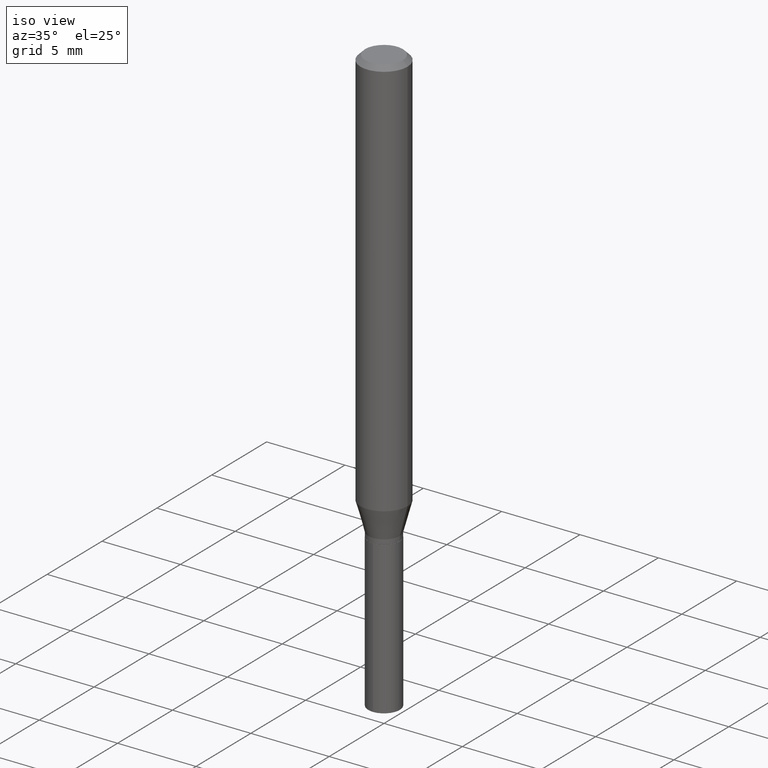
[diagram: clean part render]
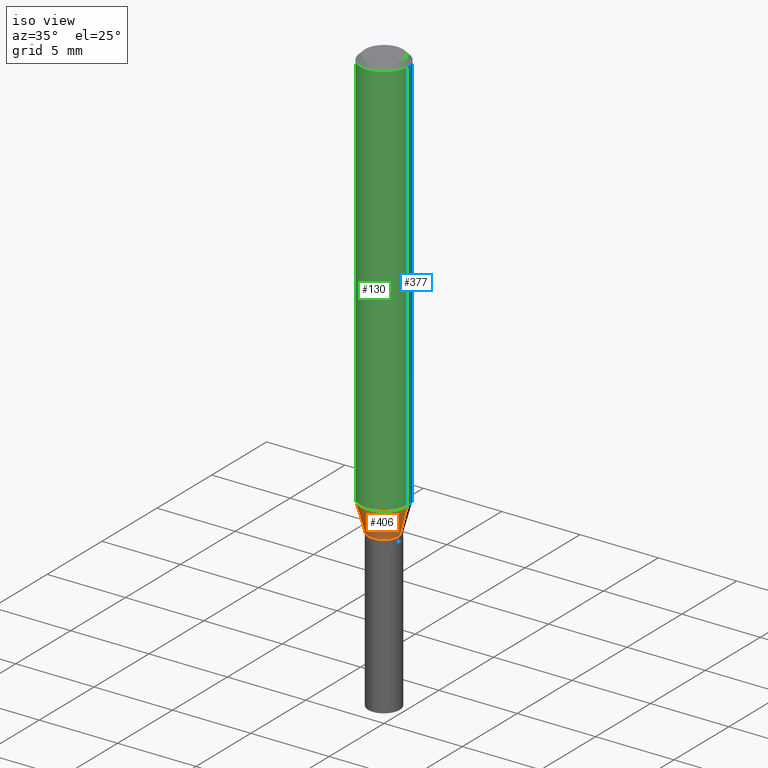
[diagram: same view with three faces highlighted in distinct colors, each labeled with its STEP entity id]
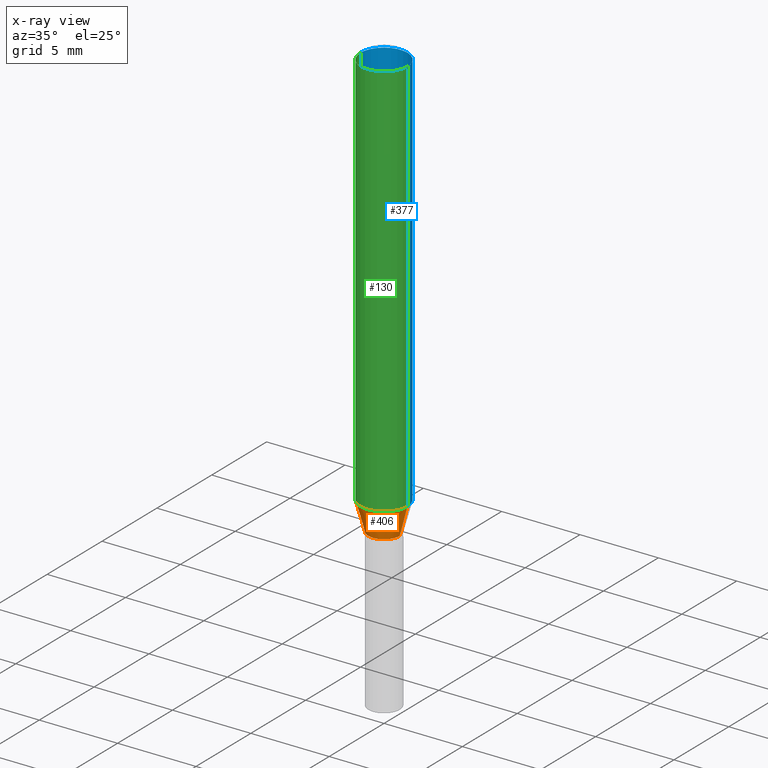
[diagram: x-ray of the same camera — body ghosted, the three highlighted faces saturated]
A machine part, iso view with three faces highlighted in distinct colors.
The next image is the same camera in x-ray (body ghosted, the three faces saturated) — at least one of them is partly hidden behind the body in this view.
Their STEP definitions:

[orange] entity #406 — the highlighted conical surface has half-angle 15 deg.
#2 = CARTESIAN_POINT ( 'NONE',  ( -0.03954999999999996019, -3.518759489069875507E-15, -1.082600000000000007 ) ) ;
#20 = CARTESIAN_POINT ( 'NONE',  ( 2.469495559832377020E-29, -3.525785175301884178E-15, -1.009825009252406369 ) ) ;
#29 = AXIS2_PLACEMENT_3D ( 'NONE', #144, #363, #277 ) ;
#43 = CARTESIAN_POINT ( 'NONE',  ( 2.647464529576028949E-29, -3.779877697431589411E-15, -1.082600000000000007 ) ) ;
#52 = VECTOR ( 'NONE', #305, 39.37007874015747433 ) ;
#74 = AXIS2_PLACEMENT_3D ( 'NONE', #20, #183, #341 ) ;
#81 = FACE_OUTER_BOUND ( 'NONE', #223, .T. ) ;
#100 = EDGE_CURVE ( 'NONE', #370, #353, #157, .T. ) ;
#127 = VERTEX_POINT ( 'NONE', #193 ) ;
#129 = DIRECTION ( 'NONE',  ( 1.000000000000000000, -6.982962677686262766E-15, 0.000000000000000000 ) ) ;
#144 = CARTESIAN_POINT ( 'NONE',  ( 2.647464529576028949E-29, -3.779877697431589411E-15, -1.082600000000000007 ) ) ;
#152 = CARTESIAN_POINT ( 'NONE',  ( -0.03954999999999996019, -3.498858045438469971E-15, -1.082600000000000007 ) ) ;
#156 = EDGE_CURVE ( 'NONE', #201, #370, #185, .T. ) ;
#157 = CIRCLE ( 'NONE', #74, 0.05905000000000011628 ) ;
#170 = DIRECTION ( 'NONE',  ( 0.2588190451025213501, 1.565188264969621968E-15, 0.9659258262890682012 ) ) ;
#175 = CONICAL_SURFACE ( 'NONE', #425, 0.03954999999999996019, 0.2617993877991500740 ) ;
#183 = DIRECTION ( 'NONE',  ( -2.445468806185136597E-29, 3.491481338843145583E-15, 1.000000000000000000 ) ) ;
#185 = LINE ( 'NONE', #152, #52 ) ;
#193 = CARTESIAN_POINT ( 'NONE',  ( 0.03954999999999996019, -4.056053871334080742E-15, -1.082600000000000007 ) ) ;
#201 = VERTEX_POINT ( 'NONE', #2 ) ;
#223 = EDGE_LOOP ( 'NONE', ( #248, #438, #453, #245 ) ) ;
#245 = ORIENTED_EDGE ( 'NONE', *, *, #100, .F. ) ;
#248 = ORIENTED_EDGE ( 'NONE', *, *, #156, .F. ) ;
#258 = CIRCLE ( 'NONE', #29, 0.03954999999999996019 ) ;
#267 = CARTESIAN_POINT ( 'NONE',  ( 0.05905000000000011628, -3.938129121419258704E-15, -1.009825009252406369 ) ) ;
#277 = DIRECTION ( 'NONE',  ( 1.000000000000000000, -6.982962677686262766E-15, 0.000000000000000000 ) ) ;
#283 = CARTESIAN_POINT ( 'NONE',  ( -0.05905000000000011628, -3.106209689835544291E-15, -1.009825009252406369 ) ) ;
#296 = VECTOR ( 'NONE', #170, 39.37007874015747433 ) ;
#305 = DIRECTION ( 'NONE',  ( -0.2588190451025213501, 5.211531920934551042E-15, 0.9659258262890682012 ) ) ;
#328 = EDGE_CURVE ( 'NONE', #127, #353, #423, .T. ) ;
#331 = DIRECTION ( 'NONE',  ( -2.445468806185136597E-29, 3.491481338843145583E-15, 1.000000000000000000 ) ) ;
#333 = CARTESIAN_POINT ( 'NONE',  ( 0.03954999999999996019, -4.056053871334080742E-15, -1.082600000000000007 ) ) ;
#341 = DIRECTION ( 'NONE',  ( 1.000000000000000000, -6.982962677686266711E-15, 0.000000000000000000 ) ) ;
#353 = VERTEX_POINT ( 'NONE', #267 ) ;
#354 = EDGE_CURVE ( 'NONE', #201, #127, #258, .T. ) ;
#363 = DIRECTION ( 'NONE',  ( -2.445468806185136597E-29, 3.491481338843145583E-15, 1.000000000000000000 ) ) ;
#370 = VERTEX_POINT ( 'NONE', #283 ) ;
#406 = ADVANCED_FACE ( 'NONE', ( #81 ), #175, .T. ) ;
#423 = LINE ( 'NONE', #333, #296 ) ;
#425 = AXIS2_PLACEMENT_3D ( 'NONE', #43, #331, #129 ) ;
#438 = ORIENTED_EDGE ( 'NONE', *, *, #354, .T. ) ;
#453 = ORIENTED_EDGE ( 'NONE', *, *, #328, .T. ) ;

[blue] entity #377 — the highlighted cylindrical surface (edge-blend (fillet) strip) has radius 1.4999 mm, axis along (-0, 0, 1).
#8 = EDGE_CURVE ( 'NONE', #353, #316, #53, .T. ) ;
#21 = VECTOR ( 'NONE', #475, 39.37007874015748143 ) ;
#26 = CARTESIAN_POINT ( 'NONE',  ( -0.05905000000000006077, 4.195754854663395916E-16, -2.904631170795524694E-30 ) ) ;
#41 = ORIENTED_EDGE ( 'NONE', *, *, #432, .T. ) ;
#53 = LINE ( 'NONE', #299, #21 ) ;
#67 = AXIS2_PLACEMENT_3D ( 'NONE', #203, #214, #235 ) ;
#73 = ORIENTED_EDGE ( 'NONE', *, *, #194, .F. ) ;
#82 = CARTESIAN_POINT ( 'NONE',  ( -0.05904999999999999832, -1.363934299490470474E-15, -0.01181000000000007044 ) ) ;
#87 = CARTESIAN_POINT ( 'NONE',  ( 0.000000000000000000, 0.000000000000000000, 0.000000000000000000 ) ) ;
#92 = DIRECTION ( 'NONE',  ( 1.000000000000000000, -6.982962677686266711E-15, 4.876176775795935793E-29 ) ) ;
#96 = EDGE_LOOP ( 'NONE', ( #41, #409, #73, #357 ) ) ;
#98 = VERTEX_POINT ( 'NONE', #82 ) ;
#163 = CYLINDRICAL_SURFACE ( 'NONE', #233, 0.05905000000000006077 ) ;
#173 = DIRECTION ( 'NONE',  ( -2.445468806185136597E-29, 3.491481338843145583E-15, 1.000000000000000000 ) ) ;
#194 = EDGE_CURVE ( 'NONE', #316, #98, #220, .T. ) ;
#203 = CARTESIAN_POINT ( 'NONE',  ( 2.888098660104663766E-31, -4.123439461173779647E-17, -0.01181000000000007044 ) ) ;
#206 = DIRECTION ( 'NONE',  ( 1.000000000000000000, -6.982962677686266711E-15, 0.000000000000000000 ) ) ;
#212 = DIRECTION ( 'NONE',  ( -2.445468806185136597E-29, 3.491481338843145583E-15, 1.000000000000000000 ) ) ;
#214 = DIRECTION ( 'NONE',  ( -2.445468806185136597E-29, 3.491481338843145583E-15, 1.000000000000000000 ) ) ;
#220 = CIRCLE ( 'NONE', #67, 0.05904999999999999832 ) ;
#233 = AXIS2_PLACEMENT_3D ( 'NONE', #87, #212, #92 ) ;
#234 = VECTOR ( 'NONE', #413, 39.37007874015748143 ) ;
#235 = DIRECTION ( 'NONE',  ( 1.000000000000000000, -6.982962677686266711E-15, 0.000000000000000000 ) ) ;
#267 = CARTESIAN_POINT ( 'NONE',  ( 0.05905000000000011628, -3.938129121419258704E-15, -1.009825009252406369 ) ) ;
#283 = CARTESIAN_POINT ( 'NONE',  ( -0.05905000000000011628, -3.106209689835544291E-15, -1.009825009252406369 ) ) ;
#299 = CARTESIAN_POINT ( 'NONE',  ( 0.05905000000000006077, -4.123439461173744764E-16, 2.879382386107503023E-30 ) ) ;
#303 = AXIS2_PLACEMENT_3D ( 'NONE', #338, #173, #206 ) ;
#316 = VERTEX_POINT ( 'NONE', #400 ) ;
#338 = CARTESIAN_POINT ( 'NONE',  ( 2.469495559832377020E-29, -3.525785175301884178E-15, -1.009825009252406369 ) ) ;
#353 = VERTEX_POINT ( 'NONE', #267 ) ;
#357 = ORIENTED_EDGE ( 'NONE', *, *, #8, .F. ) ;
#359 = FACE_OUTER_BOUND ( 'NONE', #96, .T. ) ;
#370 = VERTEX_POINT ( 'NONE', #283 ) ;
#377 = ADVANCED_FACE ( 'NONE', ( #359 ), #163, .T. ) ;
#381 = LINE ( 'NONE', #26, #234 ) ;
#400 = CARTESIAN_POINT ( 'NONE',  ( 0.05904999999999999832, -4.535783407291118600E-16, -0.01181000000000007044 ) ) ;
#409 = ORIENTED_EDGE ( 'NONE', *, *, #488, .T. ) ;
#413 = DIRECTION ( 'NONE',  ( -2.445468806185136877E-29, 3.491481338843145188E-15, 1.000000000000000000 ) ) ;
#432 = EDGE_CURVE ( 'NONE', #353, #370, #485, .T. ) ;
#475 = DIRECTION ( 'NONE',  ( -2.445468806185136877E-29, 3.491481338843145188E-15, 1.000000000000000000 ) ) ;
#485 = CIRCLE ( 'NONE', #303, 0.05905000000000011628 ) ;
#488 = EDGE_CURVE ( 'NONE', #370, #98, #381, .T. ) ;

[green] entity #130 — the highlighted cylindrical surface (edge-blend (fillet) strip) has radius 1.4999 mm, axis along (-0, 0, 1).
#8 = EDGE_CURVE ( 'NONE', #353, #316, #53, .T. ) ;
#20 = CARTESIAN_POINT ( 'NONE',  ( 2.469495559832377020E-29, -3.525785175301884178E-15, -1.009825009252406369 ) ) ;
#21 = VECTOR ( 'NONE', #475, 39.37007874015748143 ) ;
#23 = CARTESIAN_POINT ( 'NONE',  ( 0.000000000000000000, 0.000000000000000000, 0.000000000000000000 ) ) ;
#26 = CARTESIAN_POINT ( 'NONE',  ( -0.05905000000000006077, 4.195754854663395916E-16, -2.904631170795524694E-30 ) ) ;
#45 = ORIENTED_EDGE ( 'NONE', *, *, #388, .F. ) ;
#53 = LINE ( 'NONE', #299, #21 ) ;
#59 = CARTESIAN_POINT ( 'NONE',  ( 2.888098660104663766E-31, -4.123439461173779647E-17, -0.01181000000000007044 ) ) ;
#60 = DIRECTION ( 'NONE',  ( 1.000000000000000000, -6.982962677686266711E-15, 4.876176775795935793E-29 ) ) ;
#65 = FACE_OUTER_BOUND ( 'NONE', #109, .T. ) ;
#74 = AXIS2_PLACEMENT_3D ( 'NONE', #20, #183, #341 ) ;
#82 = CARTESIAN_POINT ( 'NONE',  ( -0.05904999999999999832, -1.363934299490470474E-15, -0.01181000000000007044 ) ) ;
#98 = VERTEX_POINT ( 'NONE', #82 ) ;
#100 = EDGE_CURVE ( 'NONE', #370, #353, #157, .T. ) ;
#109 = EDGE_LOOP ( 'NONE', ( #487, #158, #426, #45 ) ) ;
#130 = ADVANCED_FACE ( 'NONE', ( #65 ), #444, .T. ) ;
#157 = CIRCLE ( 'NONE', #74, 0.05905000000000011628 ) ;
#158 = ORIENTED_EDGE ( 'NONE', *, *, #100, .T. ) ;
#183 = DIRECTION ( 'NONE',  ( -2.445468806185136597E-29, 3.491481338843145583E-15, 1.000000000000000000 ) ) ;
#191 = DIRECTION ( 'NONE',  ( -2.445468806185136597E-29, 3.491481338843145583E-15, 1.000000000000000000 ) ) ;
#234 = VECTOR ( 'NONE', #413, 39.37007874015748143 ) ;
#267 = CARTESIAN_POINT ( 'NONE',  ( 0.05905000000000011628, -3.938129121419258704E-15, -1.009825009252406369 ) ) ;
#283 = CARTESIAN_POINT ( 'NONE',  ( -0.05905000000000011628, -3.106209689835544291E-15, -1.009825009252406369 ) ) ;
#299 = CARTESIAN_POINT ( 'NONE',  ( 0.05905000000000006077, -4.123439461173744764E-16, 2.879382386107503023E-30 ) ) ;
#316 = VERTEX_POINT ( 'NONE', #400 ) ;
#341 = DIRECTION ( 'NONE',  ( 1.000000000000000000, -6.982962677686266711E-15, 0.000000000000000000 ) ) ;
#353 = VERTEX_POINT ( 'NONE', #267 ) ;
#370 = VERTEX_POINT ( 'NONE', #283 ) ;
#380 = AXIS2_PLACEMENT_3D ( 'NONE', #23, #408, #60 ) ;
#381 = LINE ( 'NONE', #26, #234 ) ;
#385 = CIRCLE ( 'NONE', #456, 0.05904999999999999832 ) ;
#388 = EDGE_CURVE ( 'NONE', #98, #316, #385, .T. ) ;
#400 = CARTESIAN_POINT ( 'NONE',  ( 0.05904999999999999832, -4.535783407291118600E-16, -0.01181000000000007044 ) ) ;
#408 = DIRECTION ( 'NONE',  ( -2.445468806185136597E-29, 3.491481338843145583E-15, 1.000000000000000000 ) ) ;
#413 = DIRECTION ( 'NONE',  ( -2.445468806185136877E-29, 3.491481338843145188E-15, 1.000000000000000000 ) ) ;
#426 = ORIENTED_EDGE ( 'NONE', *, *, #8, .T. ) ;
#444 = CYLINDRICAL_SURFACE ( 'NONE', #380, 0.05905000000000006077 ) ;
#446 = DIRECTION ( 'NONE',  ( 1.000000000000000000, -6.982962677686266711E-15, 0.000000000000000000 ) ) ;
#456 = AXIS2_PLACEMENT_3D ( 'NONE', #59, #191, #446 ) ;
#475 = DIRECTION ( 'NONE',  ( -2.445468806185136877E-29, 3.491481338843145188E-15, 1.000000000000000000 ) ) ;
#487 = ORIENTED_EDGE ( 'NONE', *, *, #488, .F. ) ;
#488 = EDGE_CURVE ( 'NONE', #370, #98, #381, .T. ) ;